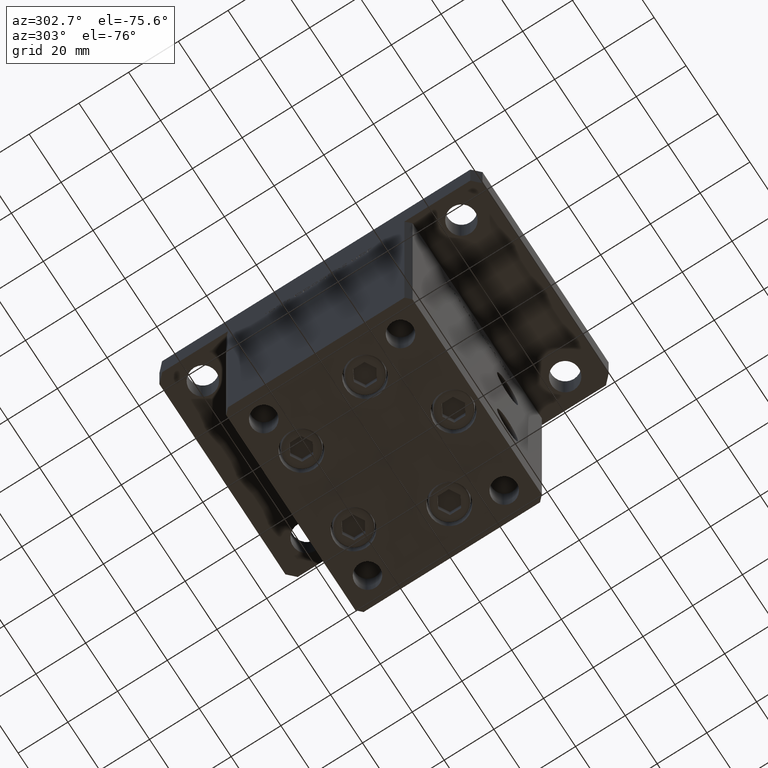
[diagram: clean part render]
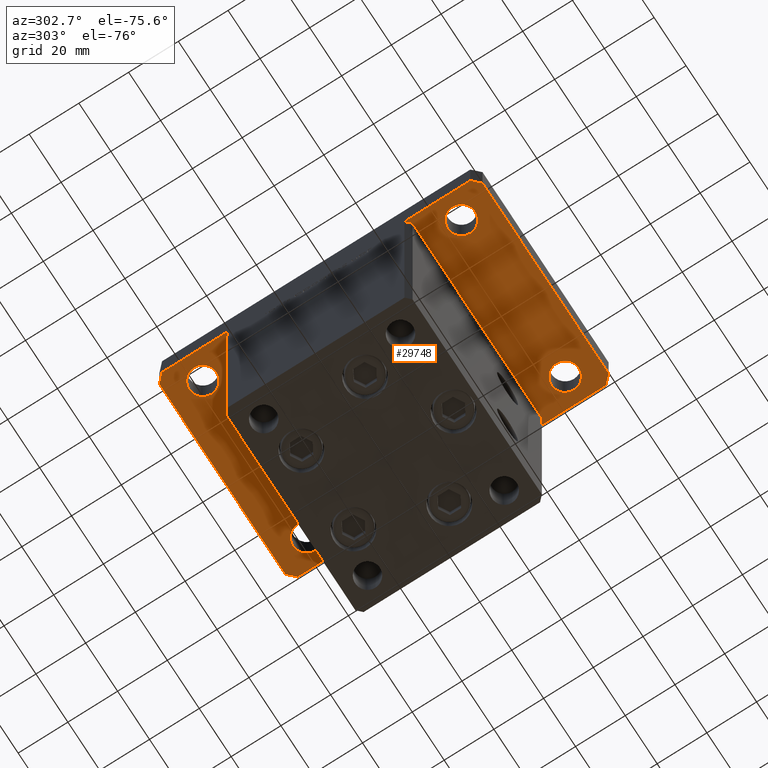
[diagram: same view with one face highlighted and labeled with its STEP entity id]
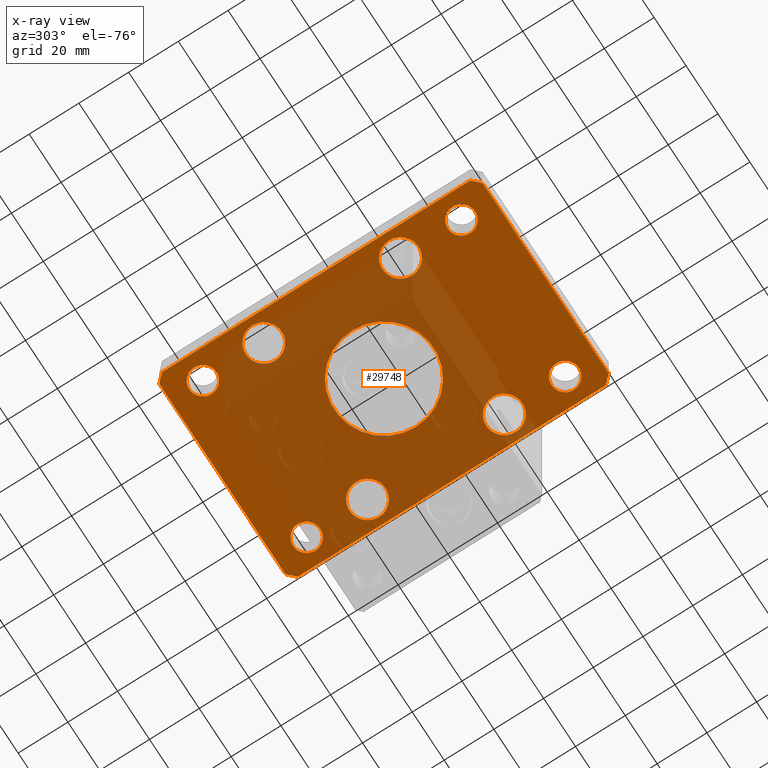
[diagram: x-ray of the same camera — body ghosted, the highlighted face saturated]
A machine part, auxiliary view. The second image highlights one B-rep face of the part: STEP entity #29748.
The next image is the same camera in x-ray: the body ghosted, the highlighted face saturated — about 55% of this face is hidden behind the body in this view.
In plain terms, the highlighted planar face has unit normal (0, 0, 1).
Its self-contained STEP definition (entity closure, byte-faithful):
#19 = CARTESIAN_POINT ( 'NONE',  ( -42.50000000000002132, 62.00000000000000711, 0.000000000000000000 ) ) ;
#947 = DIRECTION ( 'NONE',  ( 0.000000000000000000, 0.000000000000000000, 1.000000000000000000 ) ) ;
#1149 = CARTESIAN_POINT ( 'NONE',  ( 32.50000000000000000, -27.50000000000000000, 0.000000000000000000 ) ) ;
#1298 = ORIENTED_EDGE ( 'NONE', *, *, #36584, .F. ) ;
#1356 = DIRECTION ( 'NONE',  ( 1.000000000000000000, 0.000000000000000000, 0.000000000000000000 ) ) ;
#1380 = CARTESIAN_POINT ( 'NONE',  ( -32.50000000000000711, 27.50000000000000000, 0.000000000000000000 ) ) ;
#1493 = CIRCLE ( 'NONE', #51765, 7.249999999999999112 ) ;
#1579 = AXIS2_PLACEMENT_3D ( 'NONE', #31790, #48597, #22855 ) ;
#1616 = LINE ( 'NONE', #38231, #45600 ) ;
#1636 = DIRECTION ( 'NONE',  ( 0.000000000000000000, 0.000000000000000000, 1.000000000000000000 ) ) ;
#1856 = DIRECTION ( 'NONE',  ( 0.000000000000000000, 0.000000000000000000, 1.000000000000000000 ) ) ;
#1911 = CARTESIAN_POINT ( 'NONE',  ( -32.50000000000000000, -27.50000000000000000, 0.000000000000000000 ) ) ;
#1939 = EDGE_CURVE ( 'NONE', #9394, #31686, #40709, .T. ) ;
#2400 = AXIS2_PLACEMENT_3D ( 'NONE', #26465, #30268, #22124 ) ;
#2814 = DIRECTION ( 'NONE',  ( 0.000000000000000000, 0.000000000000000000, 1.000000000000000000 ) ) ;
#3073 = CARTESIAN_POINT ( 'NONE',  ( 32.50000000000000000, -27.50000000000000000, 0.000000000000000000 ) ) ;
#3544 = DIRECTION ( 'NONE',  ( 1.000000000000000000, 0.000000000000000000, 0.000000000000000000 ) ) ;
#3822 = DIRECTION ( 'NONE',  ( -0.7071067811865417996, 0.7071067811865532349, 0.000000000000000000 ) ) ;
#4064 = CARTESIAN_POINT ( 'NONE',  ( 39.50000000000001421, -64.99999999999988631, 0.000000000000000000 ) ) ;
#4253 = AXIS2_PLACEMENT_3D ( 'NONE', #9232, #25803, #42343 ) ;
#4254 = VERTEX_POINT ( 'NONE', #42913 ) ;
#4669 = EDGE_CURVE ( 'NONE', #41543, #8974, #20195, .T. ) ;
#4728 = DIRECTION ( 'NONE',  ( 0.7071067811865483499, -0.7071067811865466846, 0.000000000000000000 ) ) ;
#4769 = ORIENTED_EDGE ( 'NONE', *, *, #18799, .F. ) ;
#4771 = CIRCLE ( 'NONE', #52422, 7.249999999999999112 ) ;
#5158 = VECTOR ( 'NONE', #49633, 1000.000000000000000 ) ;
#5840 = ORIENTED_EDGE ( 'NONE', *, *, #38690, .T. ) ;
#5911 = FACE_BOUND ( 'NONE', #41344, .T. ) ;
#6186 = CARTESIAN_POINT ( 'NONE',  ( 0.000000000000000000, 0.000000000000000000, 0.000000000000000000 ) ) ;
#6797 = CIRCLE ( 'NONE', #17240, 7.249999999999999112 ) ;
#6861 = EDGE_CURVE ( 'NONE', #7436, #9394, #1616, .T. ) ;
#6959 = CARTESIAN_POINT ( 'NONE',  ( 37.99999999999999289, 51.99999999999999289, 0.000000000000000000 ) ) ;
#7436 = VERTEX_POINT ( 'NONE', #49756 ) ;
#7610 = DIRECTION ( 'NONE',  ( 0.000000000000000000, 0.000000000000000000, 1.000000000000000000 ) ) ;
#7693 = CARTESIAN_POINT ( 'NONE',  ( -32.50000000000000000, -27.50000000000000000, 0.000000000000000000 ) ) ;
#7748 = ORIENTED_EDGE ( 'NONE', *, *, #19443, .T. ) ;
#8060 = CARTESIAN_POINT ( 'NONE',  ( -27.00000000000000711, 52.00000000000000000, 0.000000000000000000 ) ) ;
#8297 = VERTEX_POINT ( 'NONE', #6959 ) ;
#8448 = EDGE_CURVE ( 'NONE', #35865, #39746, #26627, .T. ) ;
#8472 = AXIS2_PLACEMENT_3D ( 'NONE', #52997, #39460, #43805 ) ;
#8683 = ORIENTED_EDGE ( 'NONE', *, *, #1939, .F. ) ;
#8974 = VERTEX_POINT ( 'NONE', #18214 ) ;
#9232 = CARTESIAN_POINT ( 'NONE',  ( 0.000000000000000000, 0.000000000000000000, 0.000000000000000000 ) ) ;
#9394 = VERTEX_POINT ( 'NONE', #15407 ) ;
#9551 = DIRECTION ( 'NONE',  ( 1.000000000000000000, 0.000000000000000000, 0.000000000000000000 ) ) ;
#9611 = CARTESIAN_POINT ( 'NONE',  ( -42.49999999999999289, -62.00000000000001421, 0.000000000000000000 ) ) ;
#10228 = DIRECTION ( 'NONE',  ( 1.000000000000000000, 0.000000000000000000, 0.000000000000000000 ) ) ;
#10455 = EDGE_LOOP ( 'NONE', ( #43299, #47885 ) ) ;
#10863 = VERTEX_POINT ( 'NONE', #50331 ) ;
#12221 = VERTEX_POINT ( 'NONE', #18329 ) ;
#12679 = FACE_BOUND ( 'NONE', #39480, .T. ) ;
#13494 = VERTEX_POINT ( 'NONE', #39384 ) ;
#13813 = EDGE_CURVE ( 'NONE', #21653, #45066, #24008, .T. ) ;
#13998 = CARTESIAN_POINT ( 'NONE',  ( -39.75000000000000000, -27.50000000000000000, 0.000000000000000000 ) ) ;
#14683 = AXIS2_PLACEMENT_3D ( 'NONE', #1380, #23081, #46695 ) ;
#14846 = DIRECTION ( 'NONE',  ( 1.000000000000000000, 0.000000000000000000, 0.000000000000000000 ) ) ;
#14868 = EDGE_LOOP ( 'NONE', ( #48363, #21610 ) ) ;
#15407 = CARTESIAN_POINT ( 'NONE',  ( 39.50000000000001421, -64.99999999999988631, 0.000000000000000000 ) ) ;
#15514 = AXIS2_PLACEMENT_3D ( 'NONE', #1911, #1636, #1356 ) ;
#15551 = DIRECTION ( 'NONE',  ( 0.000000000000000000, 0.000000000000000000, 1.000000000000000000 ) ) ;
#15702 = CIRCLE ( 'NONE', #49522, 5.499999999999994671 ) ;
#16167 = AXIS2_PLACEMENT_3D ( 'NONE', #30085, #21116, #20842 ) ;
#16741 = FACE_OUTER_BOUND ( 'NONE', #20926, .T. ) ;
#16914 = AXIS2_PLACEMENT_3D ( 'NONE', #6186, #1856, #27074 ) ;
#16972 = ORIENTED_EDGE ( 'NONE', *, *, #41112, .T. ) ;
#17116 = EDGE_CURVE ( 'NONE', #8297, #33661, #24126, .T. ) ;
#17240 = AXIS2_PLACEMENT_3D ( 'NONE', #40950, #32034, #27955 ) ;
#17300 = CIRCLE ( 'NONE', #14683, 7.249999999999999112 ) ;
#17795 = CARTESIAN_POINT ( 'NONE',  ( -26.99999999999998579, -52.00000000000000711, 0.000000000000000000 ) ) ;
#17861 = DIRECTION ( 'NONE',  ( 1.000000000000000000, 1.405345600791337191E-15, 0.000000000000000000 ) ) ;
#17988 = CARTESIAN_POINT ( 'NONE',  ( -37.99999999999997868, -52.00000000000000711, 0.000000000000000000 ) ) ;
#18104 = CARTESIAN_POINT ( 'NONE',  ( 39.50000000000002842, 65.00000000000002842, 0.000000000000000000 ) ) ;
#18131 = ORIENTED_EDGE ( 'NONE', *, *, #51613, .T. ) ;
#18170 = EDGE_CURVE ( 'NONE', #45066, #21653, #20707, .T. ) ;
#18214 = CARTESIAN_POINT ( 'NONE',  ( -39.50000000000003553, 65.00000000000000000, 0.000000000000000000 ) ) ;
#18329 = CARTESIAN_POINT ( 'NONE',  ( 37.99999999999997868, -52.00000000000000711, 0.000000000000000000 ) ) ;
#18616 = CARTESIAN_POINT ( 'NONE',  ( -32.49999999999997868, -52.00000000000000711, 0.000000000000000000 ) ) ;
#18799 = EDGE_CURVE ( 'NONE', #45514, #49278, #27665, .T. ) ;
#18972 = CARTESIAN_POINT ( 'NONE',  ( -25.25000000000000000, -27.50000000000000000, 0.000000000000000000 ) ) ;
#19158 = DIRECTION ( 'NONE',  ( 0.000000000000000000, 0.000000000000000000, 1.000000000000000000 ) ) ;
#19443 = EDGE_CURVE ( 'NONE', #13494, #41353, #17300, .T. ) ;
#19516 = ORIENTED_EDGE ( 'NONE', *, *, #25512, .F. ) ;
#20023 = LINE ( 'NONE', #52349, #21429 ) ;
#20195 = LINE ( 'NONE', #48970, #29080 ) ;
#20608 = DIRECTION ( 'NONE',  ( 0.7071067811865459074, 0.7071067811865491270, 0.000000000000000000 ) ) ;
#20707 = CIRCLE ( 'NONE', #15514, 7.249999999999999112 ) ;
#20842 = DIRECTION ( 'NONE',  ( -1.000000000000000000, 0.000000000000000000, 0.000000000000000000 ) ) ;
#20926 = EDGE_LOOP ( 'NONE', ( #39422, #27164, #43449, #1298, #52425, #19516, #34158, #8683 ) ) ;
#21116 = DIRECTION ( 'NONE',  ( 0.000000000000000000, 0.000000000000000000, -1.000000000000000000 ) ) ;
#21171 = LINE ( 'NONE', #40990, #48013 ) ;
#21429 = VECTOR ( 'NONE', #52879, 1000.000000000000000 ) ;
#21560 = LINE ( 'NONE', #9611, #27189 ) ;
#21610 = ORIENTED_EDGE ( 'NONE', *, *, #17116, .T. ) ;
#21653 = VERTEX_POINT ( 'NONE', #13998 ) ;
#22124 = DIRECTION ( 'NONE',  ( 1.000000000000000000, 0.000000000000000000, 0.000000000000000000 ) ) ;
#22492 = EDGE_LOOP ( 'NONE', ( #50417, #28470 ) ) ;
#22681 = DIRECTION ( 'NONE',  ( 0.000000000000000000, 0.000000000000000000, 1.000000000000000000 ) ) ;
#22855 = DIRECTION ( 'NONE',  ( 1.000000000000000000, 0.000000000000000000, 0.000000000000000000 ) ) ;
#23081 = DIRECTION ( 'NONE',  ( 0.000000000000000000, 0.000000000000000000, 1.000000000000000000 ) ) ;
#23361 = VERTEX_POINT ( 'NONE', #47923 ) ;
#23680 = EDGE_CURVE ( 'NONE', #27752, #7436, #21560, .T. ) ;
#23696 = EDGE_CURVE ( 'NONE', #4254, #46146, #50550, .T. ) ;
#24008 = CIRCLE ( 'NONE', #37876, 7.249999999999999112 ) ;
#24126 = CIRCLE ( 'NONE', #45798, 5.499999999999991118 ) ;
#24251 = DIRECTION ( 'NONE',  ( 0.000000000000000000, 0.000000000000000000, 1.000000000000000000 ) ) ;
#24656 = ORIENTED_EDGE ( 'NONE', *, *, #27254, .T. ) ;
#25183 = FACE_BOUND ( 'NONE', #26462, .T. ) ;
#25512 = EDGE_CURVE ( 'NONE', #36722, #41543, #21171, .T. ) ;
#25803 = DIRECTION ( 'NONE',  ( 0.000000000000000000, 0.000000000000000000, -1.000000000000000000 ) ) ;
#26172 = CARTESIAN_POINT ( 'NONE',  ( 32.50000000000000000, 27.50000000000000000, 0.000000000000000000 ) ) ;
#26382 = CARTESIAN_POINT ( 'NONE',  ( -42.50000000000002132, 62.00000000000000711, 0.000000000000000000 ) ) ;
#26438 = DIRECTION ( 'NONE',  ( 1.000000000000000000, 0.000000000000000000, 0.000000000000000000 ) ) ;
#26454 = CARTESIAN_POINT ( 'NONE',  ( 27.00000000000001421, 51.99999999999999289, 0.000000000000000000 ) ) ;
#26462 = EDGE_LOOP ( 'NONE', ( #18131, #29064 ) ) ;
#26465 = CARTESIAN_POINT ( 'NONE',  ( 32.49999999999997868, -52.00000000000000711, 0.000000000000000000 ) ) ;
#26601 = VECTOR ( 'NONE', #50379, 1000.000000000000000 ) ;
#26627 = CIRCLE ( 'NONE', #37879, 5.499999999999994671 ) ;
#26684 = CARTESIAN_POINT ( 'NONE',  ( 42.50000000000000000, -61.99999999999988631, 0.000000000000000000 ) ) ;
#27074 = DIRECTION ( 'NONE',  ( 1.000000000000000000, 0.000000000000000000, -0.000000000000000000 ) ) ;
#27164 = ORIENTED_EDGE ( 'NONE', *, *, #23680, .F. ) ;
#27189 = VECTOR ( 'NONE', #4728, 1000.000000000000000 ) ;
#27254 = EDGE_CURVE ( 'NONE', #10863, #45946, #45420, .T. ) ;
#27665 = CIRCLE ( 'NONE', #4253, 20.00000000000000000 ) ;
#27752 = VERTEX_POINT ( 'NONE', #38504 ) ;
#27955 = DIRECTION ( 'NONE',  ( 1.000000000000000000, 0.000000000000000000, 0.000000000000000000 ) ) ;
#28133 = EDGE_CURVE ( 'NONE', #45946, #10863, #4771, .T. ) ;
#28235 = CARTESIAN_POINT ( 'NONE',  ( 32.50000000000000000, 51.99999999999999289, 0.000000000000000000 ) ) ;
#28470 = ORIENTED_EDGE ( 'NONE', *, *, #23696, .T. ) ;
#28563 = DIRECTION ( 'NONE',  ( 1.000000000000000000, 0.000000000000000000, 0.000000000000000000 ) ) ;
#28765 = CARTESIAN_POINT ( 'NONE',  ( 20.00000000000000000, 2.449293598294706513E-15, 0.000000000000000000 ) ) ;
#29064 = ORIENTED_EDGE ( 'NONE', *, *, #8448, .T. ) ;
#29080 = VECTOR ( 'NONE', #52790, 1000.000000000000000 ) ;
#29249 = FACE_BOUND ( 'NONE', #48856, .T. ) ;
#29748 = ADVANCED_FACE ( 'NONE', ( #37648, #16741, #25183, #33324, #12679, #29249, #5911, #30600, #39014, #35216 ), #39544, .F. ) ;
#30085 = CARTESIAN_POINT ( 'NONE',  ( 0.000000000000000000, 0.000000000000000000, 0.000000000000000000 ) ) ;
#30120 = CIRCLE ( 'NONE', #2400, 5.499999999999998224 ) ;
#30144 = VERTEX_POINT ( 'NONE', #26382 ) ;
#30268 = DIRECTION ( 'NONE',  ( 0.000000000000000000, 0.000000000000000000, 1.000000000000000000 ) ) ;
#30600 = FACE_BOUND ( 'NONE', #22492, .T. ) ;
#30783 = AXIS2_PLACEMENT_3D ( 'NONE', #3073, #2814, #28563 ) ;
#30820 = CARTESIAN_POINT ( 'NONE',  ( -32.50000000000000711, 27.50000000000000000, 0.000000000000000000 ) ) ;
#31686 = VERTEX_POINT ( 'NONE', #26684 ) ;
#31790 = CARTESIAN_POINT ( 'NONE',  ( -32.50000000000000000, 52.00000000000000000, 0.000000000000000000 ) ) ;
#32034 = DIRECTION ( 'NONE',  ( 0.000000000000000000, 0.000000000000000000, 1.000000000000000000 ) ) ;
#32194 = CARTESIAN_POINT ( 'NONE',  ( 39.75000000000000000, -27.50000000000000000, 0.000000000000000000 ) ) ;
#33306 = LINE ( 'NONE', #33582, #26601 ) ;
#33324 = FACE_BOUND ( 'NONE', #14868, .T. ) ;
#33582 = CARTESIAN_POINT ( 'NONE',  ( -39.50000000000003553, 65.00000000000000000, 0.000000000000000000 ) ) ;
#33637 = CIRCLE ( 'NONE', #1579, 5.499999999999994671 ) ;
#33661 = VERTEX_POINT ( 'NONE', #26454 ) ;
#33759 = EDGE_CURVE ( 'NONE', #23361, #52301, #45617, .T. ) ;
#34088 = DIRECTION ( 'NONE',  ( 1.000000000000000000, 0.000000000000000000, 0.000000000000000000 ) ) ;
#34158 = ORIENTED_EDGE ( 'NONE', *, *, #38131, .F. ) ;
#34174 = CARTESIAN_POINT ( 'NONE',  ( -32.49999999999997868, -52.00000000000000711, 0.000000000000000000 ) ) ;
#34468 = EDGE_CURVE ( 'NONE', #12221, #47357, #30120, .T. ) ;
#34869 = CARTESIAN_POINT ( 'NONE',  ( 32.50000000000000000, 51.99999999999999289, 0.000000000000000000 ) ) ;
#35216 = FACE_BOUND ( 'NONE', #10455, .T. ) ;
#35813 = EDGE_LOOP ( 'NONE', ( #4769, #40262 ) ) ;
#35861 = EDGE_LOOP ( 'NONE', ( #5840, #7748 ) ) ;
#35865 = VERTEX_POINT ( 'NONE', #17795 ) ;
#36584 = EDGE_CURVE ( 'NONE', #8974, #30144, #33306, .T. ) ;
#36722 = VERTEX_POINT ( 'NONE', #41708 ) ;
#37073 = CIRCLE ( 'NONE', #8472, 5.499999999999998224 ) ;
#37178 = LINE ( 'NONE', #19, #5158 ) ;
#37253 = CARTESIAN_POINT ( 'NONE',  ( 25.25000000000000000, 27.50000000000000000, 0.000000000000000000 ) ) ;
#37648 = FACE_BOUND ( 'NONE', #35813, .T. ) ;
#37876 = AXIS2_PLACEMENT_3D ( 'NONE', #7693, #24251, #14846 ) ;
#37879 = AXIS2_PLACEMENT_3D ( 'NONE', #34174, #43121, #42838 ) ;
#38131 = EDGE_CURVE ( 'NONE', #31686, #36722, #20023, .T. ) ;
#38231 = CARTESIAN_POINT ( 'NONE',  ( -39.50000000000000000, -65.00000000000000000, 0.000000000000000000 ) ) ;
#38504 = CARTESIAN_POINT ( 'NONE',  ( -42.49999999999999289, -62.00000000000001421, 0.000000000000000000 ) ) ;
#38690 = EDGE_CURVE ( 'NONE', #41353, #13494, #1493, .T. ) ;
#39014 = FACE_BOUND ( 'NONE', #35861, .T. ) ;
#39076 = EDGE_CURVE ( 'NONE', #49278, #45514, #49999, .T. ) ;
#39194 = DIRECTION ( 'NONE',  ( 1.000000000000000000, 0.000000000000000000, 0.000000000000000000 ) ) ;
#39328 = CARTESIAN_POINT ( 'NONE',  ( -39.75000000000000711, 27.50000000000000000, 0.000000000000000000 ) ) ;
#39384 = CARTESIAN_POINT ( 'NONE',  ( -25.25000000000000711, 27.50000000000000000, 0.000000000000000000 ) ) ;
#39422 = ORIENTED_EDGE ( 'NONE', *, *, #6861, .F. ) ;
#39460 = DIRECTION ( 'NONE',  ( 0.000000000000000000, 0.000000000000000000, 1.000000000000000000 ) ) ;
#39480 = EDGE_LOOP ( 'NONE', ( #49313, #16972 ) ) ;
#39544 = PLANE ( 'NONE',  #16914 ) ;
#39746 = VERTEX_POINT ( 'NONE', #17988 ) ;
#40056 = CARTESIAN_POINT ( 'NONE',  ( -20.00000000000000000, 0.000000000000000000, 0.000000000000000000 ) ) ;
#40247 = CARTESIAN_POINT ( 'NONE',  ( -32.50000000000000000, 52.00000000000000000, 0.000000000000000000 ) ) ;
#40262 = ORIENTED_EDGE ( 'NONE', *, *, #39076, .F. ) ;
#40709 = LINE ( 'NONE', #4064, #41123 ) ;
#40717 = EDGE_CURVE ( 'NONE', #47357, #12221, #37073, .T. ) ;
#40781 = AXIS2_PLACEMENT_3D ( 'NONE', #34869, #51128, #39194 ) ;
#40950 = CARTESIAN_POINT ( 'NONE',  ( 32.50000000000000000, 27.50000000000000000, 0.000000000000000000 ) ) ;
#40990 = CARTESIAN_POINT ( 'NONE',  ( 42.50000000000000000, 62.00000000000000711, 0.000000000000000000 ) ) ;
#41112 = EDGE_CURVE ( 'NONE', #52301, #23361, #33637, .T. ) ;
#41123 = VECTOR ( 'NONE', #20608, 1000.000000000000114 ) ;
#41344 = EDGE_LOOP ( 'NONE', ( #24656, #53531 ) ) ;
#41353 = VERTEX_POINT ( 'NONE', #39328 ) ;
#41543 = VERTEX_POINT ( 'NONE', #18104 ) ;
#41708 = CARTESIAN_POINT ( 'NONE',  ( 42.50000000000000000, 62.00000000000000711, 0.000000000000000000 ) ) ;
#41838 = DIRECTION ( 'NONE',  ( 0.000000000000000000, 0.000000000000000000, 1.000000000000000000 ) ) ;
#42343 = DIRECTION ( 'NONE',  ( -1.000000000000000000, 0.000000000000000000, 0.000000000000000000 ) ) ;
#42543 = CIRCLE ( 'NONE', #40781, 5.499999999999991118 ) ;
#42838 = DIRECTION ( 'NONE',  ( 1.000000000000000000, 0.000000000000000000, 0.000000000000000000 ) ) ;
#42913 = CARTESIAN_POINT ( 'NONE',  ( 39.75000000000000000, 27.50000000000000000, 0.000000000000000000 ) ) ;
#43121 = DIRECTION ( 'NONE',  ( 0.000000000000000000, 0.000000000000000000, 1.000000000000000000 ) ) ;
#43167 = EDGE_CURVE ( 'NONE', #46146, #4254, #6797, .T. ) ;
#43299 = ORIENTED_EDGE ( 'NONE', *, *, #40717, .T. ) ;
#43449 = ORIENTED_EDGE ( 'NONE', *, *, #44947, .F. ) ;
#43805 = DIRECTION ( 'NONE',  ( 1.000000000000000000, 0.000000000000000000, 0.000000000000000000 ) ) ;
#44947 = EDGE_CURVE ( 'NONE', #30144, #27752, #37178, .T. ) ;
#45066 = VERTEX_POINT ( 'NONE', #18972 ) ;
#45420 = CIRCLE ( 'NONE', #30783, 7.249999999999999112 ) ;
#45514 = VERTEX_POINT ( 'NONE', #40056 ) ;
#45600 = VECTOR ( 'NONE', #17861, 1000.000000000000000 ) ;
#45617 = CIRCLE ( 'NONE', #52563, 5.499999999999994671 ) ;
#45798 = AXIS2_PLACEMENT_3D ( 'NONE', #28235, #7610, #3544 ) ;
#45946 = VERTEX_POINT ( 'NONE', #32194 ) ;
#46146 = VERTEX_POINT ( 'NONE', #37253 ) ;
#46695 = DIRECTION ( 'NONE',  ( 1.000000000000000000, 0.000000000000000000, 0.000000000000000000 ) ) ;
#46888 = CARTESIAN_POINT ( 'NONE',  ( 26.99999999999998579, -52.00000000000000711, 0.000000000000000000 ) ) ;
#47357 = VERTEX_POINT ( 'NONE', #46888 ) ;
#47620 = DIRECTION ( 'NONE',  ( 1.000000000000000000, 0.000000000000000000, 0.000000000000000000 ) ) ;
#47885 = ORIENTED_EDGE ( 'NONE', *, *, #34468, .T. ) ;
#47923 = CARTESIAN_POINT ( 'NONE',  ( -38.00000000000000000, 52.00000000000000000, 0.000000000000000000 ) ) ;
#48013 = VECTOR ( 'NONE', #3822, 1000.000000000000000 ) ;
#48363 = ORIENTED_EDGE ( 'NONE', *, *, #49684, .T. ) ;
#48597 = DIRECTION ( 'NONE',  ( 0.000000000000000000, 0.000000000000000000, 1.000000000000000000 ) ) ;
#48856 = EDGE_LOOP ( 'NONE', ( #50965, #50798 ) ) ;
#48970 = CARTESIAN_POINT ( 'NONE',  ( 39.50000000000002842, 65.00000000000002842, 0.000000000000000000 ) ) ;
#49278 = VERTEX_POINT ( 'NONE', #28765 ) ;
#49313 = ORIENTED_EDGE ( 'NONE', *, *, #33759, .T. ) ;
#49522 = AXIS2_PLACEMENT_3D ( 'NONE', #18616, #19158, #10228 ) ;
#49633 = DIRECTION ( 'NONE',  ( 2.238352872228137677E-16, -1.000000000000000000, 0.000000000000000000 ) ) ;
#49682 = AXIS2_PLACEMENT_3D ( 'NONE', #26172, #947, #26438 ) ;
#49684 = EDGE_CURVE ( 'NONE', #33661, #8297, #42543, .T. ) ;
#49756 = CARTESIAN_POINT ( 'NONE',  ( -39.50000000000000000, -65.00000000000000000, 0.000000000000000000 ) ) ;
#49999 = CIRCLE ( 'NONE', #16167, 20.00000000000000000 ) ;
#50331 = CARTESIAN_POINT ( 'NONE',  ( 25.25000000000000000, -27.50000000000000000, 0.000000000000000000 ) ) ;
#50379 = DIRECTION ( 'NONE',  ( -0.7071067811865466846, -0.7071067811865483499, 0.000000000000000000 ) ) ;
#50417 = ORIENTED_EDGE ( 'NONE', *, *, #43167, .T. ) ;
#50550 = CIRCLE ( 'NONE', #49682, 7.249999999999999112 ) ;
#50798 = ORIENTED_EDGE ( 'NONE', *, *, #18170, .T. ) ;
#50965 = ORIENTED_EDGE ( 'NONE', *, *, #13813, .T. ) ;
#51128 = DIRECTION ( 'NONE',  ( 0.000000000000000000, 0.000000000000000000, 1.000000000000000000 ) ) ;
#51613 = EDGE_CURVE ( 'NONE', #39746, #35865, #15702, .T. ) ;
#51765 = AXIS2_PLACEMENT_3D ( 'NONE', #30820, #22681, #34088 ) ;
#52301 = VERTEX_POINT ( 'NONE', #8060 ) ;
#52349 = CARTESIAN_POINT ( 'NONE',  ( 42.50000000000000000, -61.99999999999988631, 0.000000000000000000 ) ) ;
#52422 = AXIS2_PLACEMENT_3D ( 'NONE', #1149, #41838, #9551 ) ;
#52425 = ORIENTED_EDGE ( 'NONE', *, *, #4669, .F. ) ;
#52563 = AXIS2_PLACEMENT_3D ( 'NONE', #40247, #15551, #47620 ) ;
#52790 = DIRECTION ( 'NONE',  ( -1.000000000000000000, -3.513364001978340512E-16, 0.000000000000000000 ) ) ;
#52879 = DIRECTION ( 'NONE',  ( 0.000000000000000000, 1.000000000000000000, 0.000000000000000000 ) ) ;
#52997 = CARTESIAN_POINT ( 'NONE',  ( 32.49999999999997868, -52.00000000000000711, 0.000000000000000000 ) ) ;
#53531 = ORIENTED_EDGE ( 'NONE', *, *, #28133, .T. ) ;